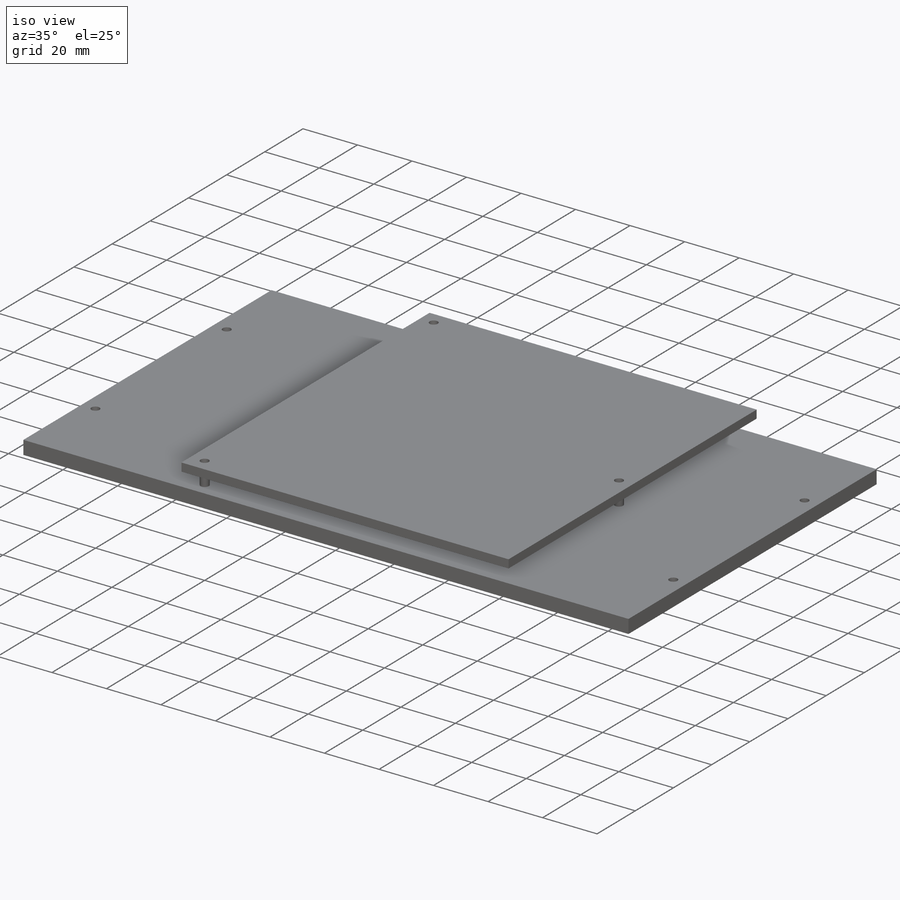
[diagram: iso view]
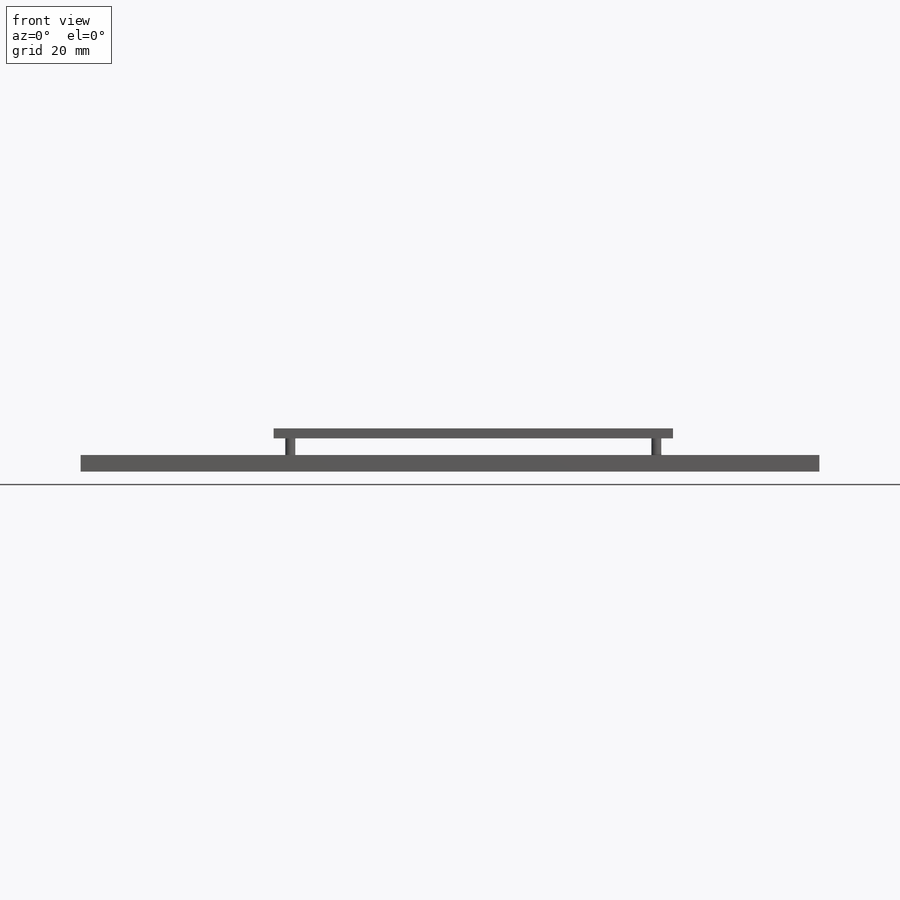
[diagram: front view]
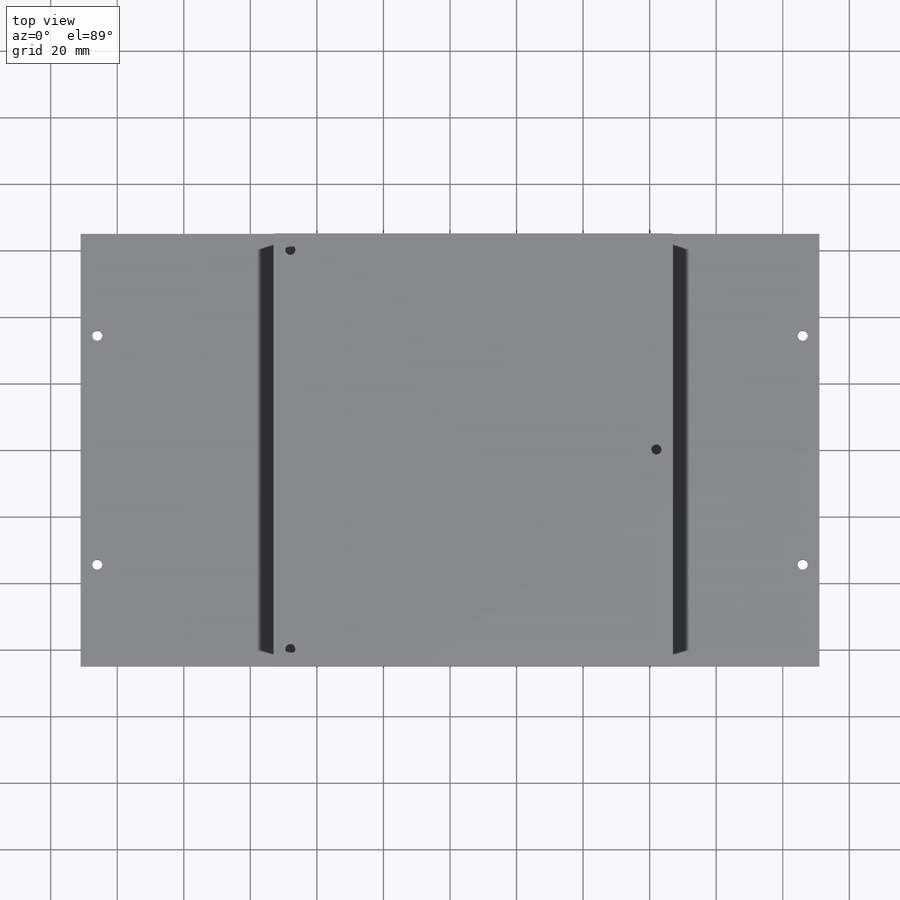
[diagram: top view]
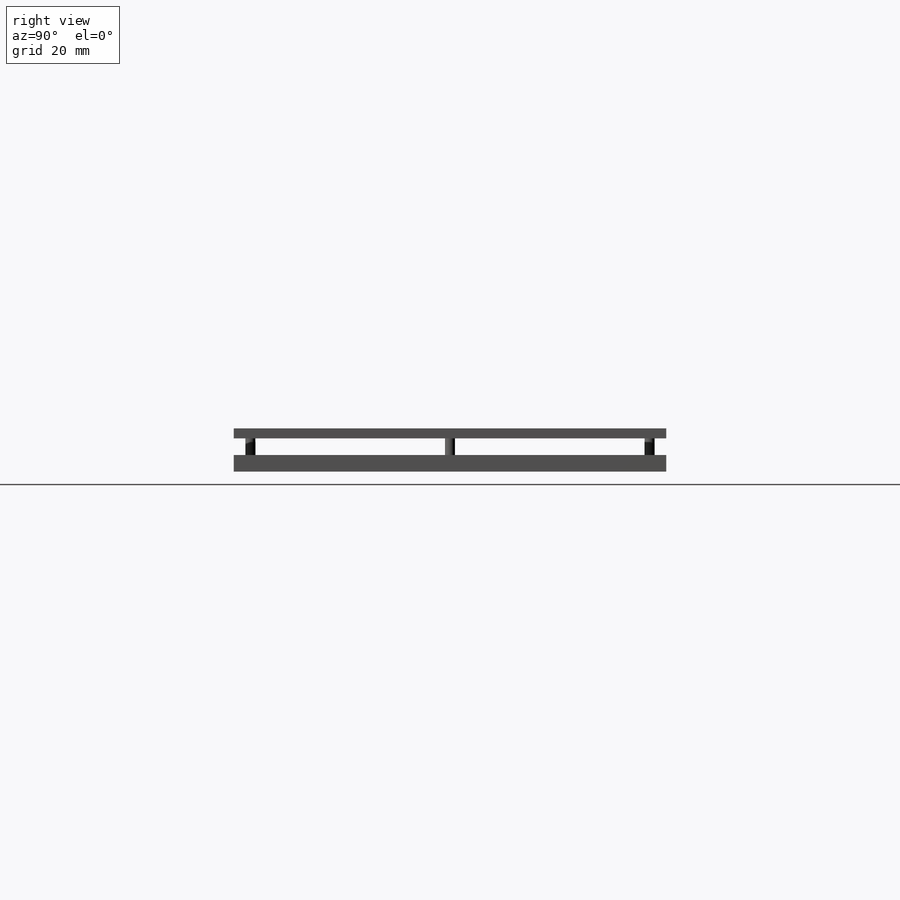
[diagram: right view]
SOLIDWORKS PART (.sldprt)
format: sldprt  version: not decoded by parser v0  size: 442,368 bytes
history: native  units: mm
features: plane x3, sketch x3, extrude x3, material x1 (+13 scaffold rows collapsed)
feature tree (23):
  scaffold x13  (default folders/planes/origin — collapsed)
  material  "Teca"
  plane  "Plano frontal"
  plane  "Plano superior"
  plane  "Plano direito"
  sketch  "Esboço1"  dims[c1.D4=~7.413197mm c1.D5=3.0mm c1.D6=~6.964952mm c1.D8=3.0mm c1.D9=3.0mm c1.D10=3.0mm c1.D1=222.0mm c1.D2=130.0mm c1.D3=30.6mm c2.D4=5.0mm c2.D6=99.4mm c2.D7=5.0mm c2.D11=5.0mm]
  extrude  "Ressalto-extrusão1"  Depth=5mm
  sketch  "Esboço2"  dims[c1.D4=3.0mm c1.D5=3.0mm c1.D6=3.0mm c1.D8=3.0mm c1.D9=3.0mm c1.D10=3.0mm c1.D11=3.0mm c1.D1=130.0mm c1.D2=120.0mm c1.D3=58.0mm c1.D7=5.0mm c2.D8=5.0mm c2.D9=5.0mm c2.D10=5.0mm c2.D11=5.0mm]
  extrude  "Ressalto-extrusão2"  Depth=5mm
  extrude  "Ressalto-extrusão3"  [1 undecoded]
  sketch  "Esboço2<3>"  dims[D1=3.0mm D19=5.0mm]
decode coverage: 5 of 6 modeling features carry decoded parameters
note: ~ marks probable driven/reference dimensions
note: 1 parameter value undecoded
note: suppression state not decoded; provenance and decode notes live in map.json
